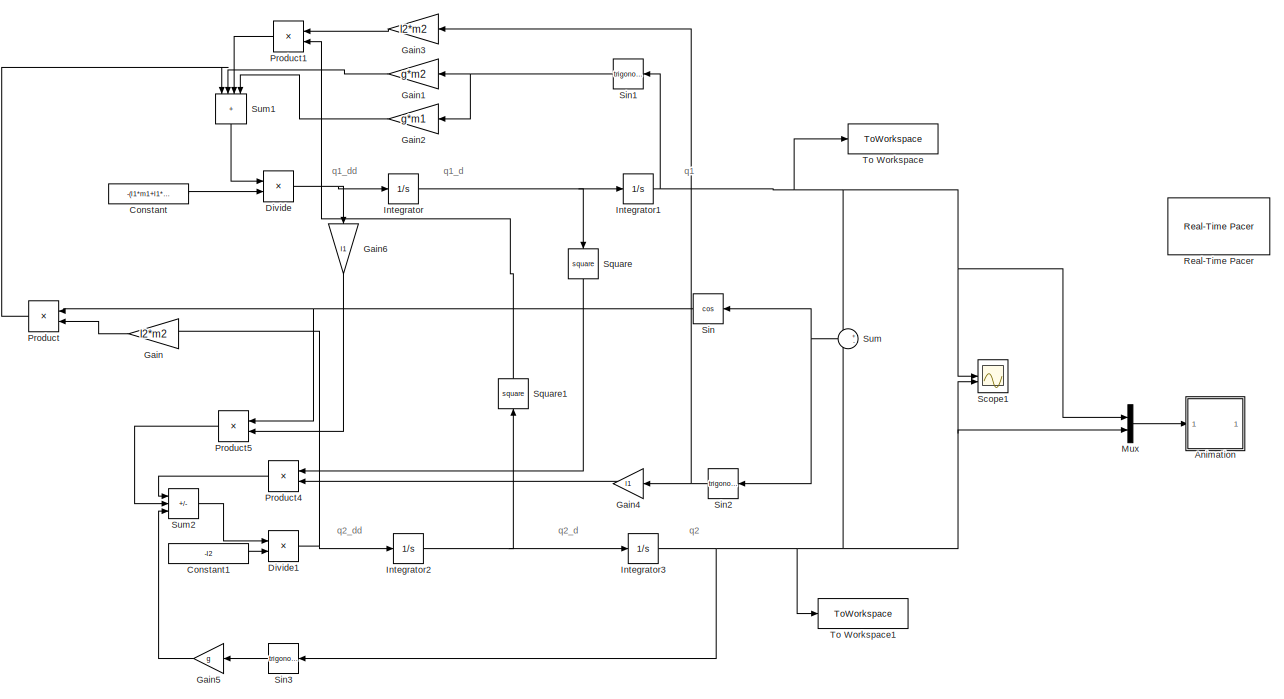
[diagram: root canvas - part 1/2, full width, top band]
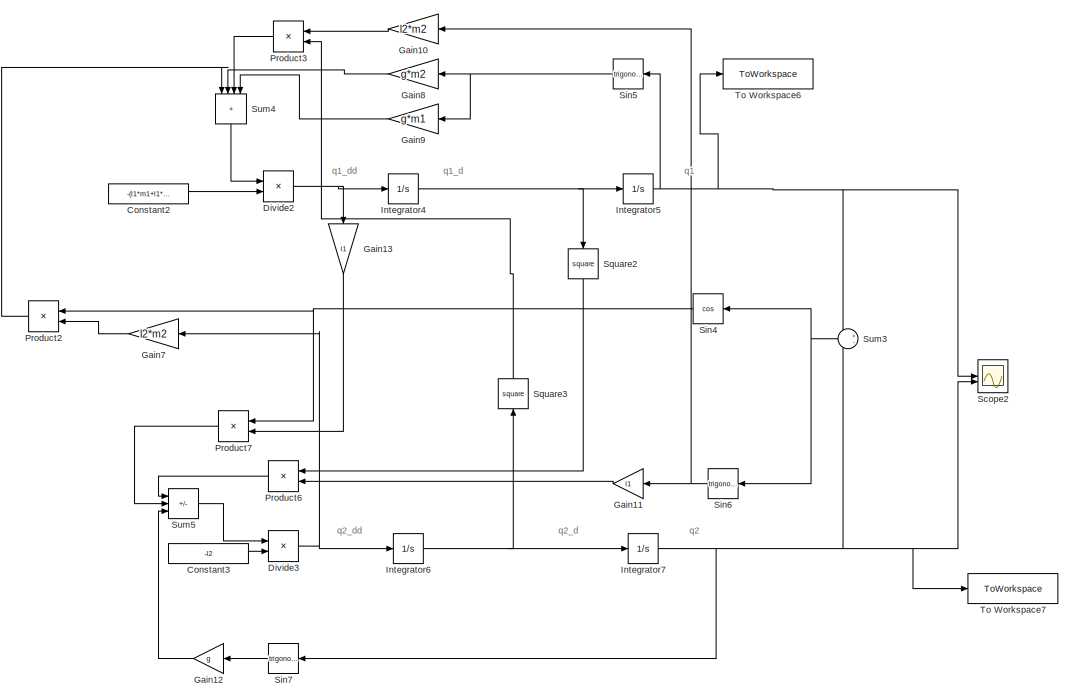
[diagram: root canvas - part 2/2, full width, bottom band]
MODEL slx_4c318d818529
KIND model
CONFIG AbsTol = auto
CONFIG EnableMultiTasking = off
CONFIG FixedStep = 0.01
CONFIG MaxStep = auto
CONFIG MinStep = auto
CONFIG RelTol = 1e-3
CONFIG SampleTimeConstraint = Unconstrained
CONFIG SolverName = ode4
CONFIG StartTime = 0.0
CONFIG StopTime = 100
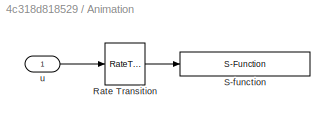
BLOCK [SubSystem] Animation
BLOCK [RateTransition] Animation/Rate Transition
BLOCK [S-Function] Animation/S-function
  DeleteFcn = pendan([],[],[],'DeleteBlock');
  EnableBusSupport = off
  FunctionName = pendelSFunc
  SFcnIsStateOwnerBlock = off
  SFunctionDeploymentMode = off
BLOCK [Inport] Animation/u
BLOCK [Constant] Constant
  Value = -(l1*m1+l1*m2)
BLOCK [Constant] Constant1
  Value = -l2
BLOCK [Constant] Constant2
  Commented = on
  Value = -(l1*m1+l1*m2)
BLOCK [Constant] Constant3
  Commented = on
  Value = -l2
BLOCK [Product] Divide
  Inputs = */
BLOCK [Product] Divide1
  Inputs = */
BLOCK [Product] Divide2
  Commented = on
  Inputs = */
BLOCK [Product] Divide3
  Commented = on
  Inputs = */
BLOCK [Gain] Gain
  Gain = l2*m2
  NameLocation = top
BLOCK [Gain] Gain1
  Gain = g*m2
  NameLocation = top
BLOCK [Gain] Gain10
  Commented = on
  Gain = l2*m2
  NameLocation = top
BLOCK [Gain] Gain11
  Commented = on
  Gain = l1
  NameLocation = top
BLOCK [Gain] Gain12
  Commented = on
  Gain = g
  NameLocation = top
BLOCK [Gain] Gain13
  Commented = on
  Gain = l1
  NameLocation = left
BLOCK [Gain] Gain2
  Gain = g*m1
  NameLocation = top
BLOCK [Gain] Gain3
  Gain = l2*m2
  NameLocation = top
BLOCK [Gain] Gain4
  Gain = l1
  NameLocation = top
BLOCK [Gain] Gain5
  Gain = g
  NameLocation = top
BLOCK [Gain] Gain6
  Gain = l1
  NameLocation = left
BLOCK [Gain] Gain7
  Commented = on
  Gain = l2*m2
  NameLocation = top
BLOCK [Gain] Gain8
  Commented = on
  Gain = g*m2
  NameLocation = top
BLOCK [Gain] Gain9
  Commented = on
  Gain = g*m1
  NameLocation = top
BLOCK [Integrator] Integrator
BLOCK [Integrator] Integrator1
  InitialCondition = 180/180*pi
BLOCK [Integrator] Integrator2
BLOCK [Integrator] Integrator3
  InitialCondition = 180/180*pi
BLOCK [Integrator] Integrator4
  Commented = on
BLOCK [Integrator] Integrator5
  Commented = on
  InitialCondition = 45/180*pi + epsilon
BLOCK [Integrator] Integrator6
  Commented = on
BLOCK [Integrator] Integrator7
  Commented = on
  InitialCondition = 180/180*pi
BLOCK [Mux] Mux
  DisplayOption = bar
  Inputs = 2
BLOCK [Product] Product
  NameLocation = top
BLOCK [Product] Product1
  NameLocation = top
BLOCK [Product] Product2
  Commented = on
  NameLocation = top
BLOCK [Product] Product3
  Commented = on
  NameLocation = top
BLOCK [Product] Product4
  NameLocation = top
BLOCK [Product] Product5
  NameLocation = top
BLOCK [Product] Product6
  Commented = on
  NameLocation = top
BLOCK [Product] Product7
  Commented = on
  NameLocation = top
BLOCK [Reference] Real-Time Pacer  REF=realtime_pacer_lib/Real-Time Pacer
  Commented = on
  SourceBlock = realtime_pacer_lib/Real-Time Pacer
  SourceType = RealTime_Pacer
BLOCK [Scope] Scope1
  Floating = off
  NumInputPorts = 2
  ScopeSpecificationString = Simulink.scopes.TimeScopeBlockCfg('CurrentConfiguration', extmgr.ConfigurationSet(extmgr.Configuration('Core','General UI',true),extmgr.Configuration('Core','Source UI',true),extmgr.Configuration('Sources','WiredSimulink',true,'DataLoggingVariableName','ScopeData1'),extmgr.Configuration('Visuals','Time Domain',true,'SerializedDisplays',{struct('MinYLimReal','2.14159','MaxYLimReal','4.14159','YLabe...<+2068ch>
BLOCK [Scope] Scope2
  Commented = on
  Floating = off
  NumInputPorts = 2
  ScopeSpecificationString = Simulink.scopes.TimeScopeBlockCfg('CurrentConfiguration', extmgr.ConfigurationSet(extmgr.Configuration('Core','General UI',true),extmgr.Configuration('Core','Source UI',true),extmgr.Configuration('Sources','WiredSimulink',true,'DataLoggingVariableName','ScopeData1'),extmgr.Configuration('Visuals','Time Domain',true,'SerializedDisplays',{struct('MinYLimReal','-54.34224','MaxYLimReal','30.41554','YL...<+2100ch>
BLOCK [Trigonometry] Sin
  NameLocation = top
  Operator = cos
BLOCK [Trigonometry] Sin1
  NameLocation = top
BLOCK [Trigonometry] Sin2
  NameLocation = top
BLOCK [Trigonometry] Sin3
  NameLocation = top
BLOCK [Trigonometry] Sin4
  Commented = on
  NameLocation = top
  Operator = cos
BLOCK [Trigonometry] Sin5
  Commented = on
  NameLocation = top
BLOCK [Trigonometry] Sin6
  Commented = on
  NameLocation = top
BLOCK [Trigonometry] Sin7
  Commented = on
  NameLocation = top
BLOCK [Math] Square
  NameLocation = left
  Operator = square
BLOCK [Math] Square1
  NameLocation = right
  Operator = square
BLOCK [Math] Square2
  Commented = on
  NameLocation = left
  Operator = square
BLOCK [Math] Square3
  Commented = on
  NameLocation = right
  Operator = square
BLOCK [Sum] Sum
  Inputs = +-
  NameLocation = top
BLOCK [Sum] Sum1
  IconShape = rectangular
  Inputs = ++++
  NameLocation = left
BLOCK [Sum] Sum2
  IconShape = rectangular
  Inputs = -++
BLOCK [Sum] Sum3
  Commented = on
  Inputs = +-
  NameLocation = top
BLOCK [Sum] Sum4
  Commented = on
  IconShape = rectangular
  Inputs = ++++
  NameLocation = left
BLOCK [Sum] Sum5
  Commented = on
  IconShape = rectangular
  Inputs = -++
BLOCK [ToWorkspace] To Workspace
  Commented = on
  FixptAsFi = on
  MaxDataPoints = inf
  SampleTime = -1
  VariableName = q1
BLOCK [ToWorkspace] To Workspace1
  Commented = on
  FixptAsFi = on
  MaxDataPoints = inf
  SampleTime = -1
  VariableName = q2
BLOCK [ToWorkspace] To Workspace6
  Commented = on
  FixptAsFi = on
  MaxDataPoints = inf
  SampleTime = -1
  VariableName = q12
BLOCK [ToWorkspace] To Workspace7
  Commented = on
  FixptAsFi = on
  MaxDataPoints = inf
  SampleTime = -1
  VariableName = q22
ANNOTATION (root): q1
ANNOTATION (root): q1_d
ANNOTATION (root): q1_dd
ANNOTATION (root): q2
ANNOTATION (root): q2_d
ANNOTATION (root): q2_dd
LINE Animation/Rate Transition:1 -> Animation/S-function:1
LINE Animation/u:1 -> Animation/Rate Transition:1
LINE Constant1:1 -> Divide1:2
LINE Constant2:1 -> Divide2:2
LINE Constant3:1 -> Divide3:2
LINE Constant:1 -> Divide:2
NET Divide1:1 -> Gain:1, Integrator2:1
NET Divide2:1 -> Gain13:1, Integrator4:1
NET Divide3:1 -> Gain7:1, Integrator6:1
NET Divide:1 -> Gain6:1, Integrator:1
LINE Gain10:1 -> Product3:1
LINE Gain11:1 -> Product6:2
LINE Gain12:1 -> Sum5:3
LINE Gain13:1 -> Product7:2
LINE Gain1:1 -> Sum1:2
LINE Gain2:1 -> Sum1:4
LINE Gain3:1 -> Product1:1
LINE Gain4:1 -> Product4:2
LINE Gain5:1 -> Sum2:3
LINE Gain6:1 -> Product5:2
LINE Gain7:1 -> Product2:2
LINE Gain8:1 -> Sum4:2
LINE Gain9:1 -> Sum4:4
LINE Gain:1 -> Product:2
NET Integrator1:1 -> Mux:1, Scope1:1, Sin1:1, Sum:1, To Workspace:1
NET Integrator2:1 -> Integrator3:1, Square1:1
NET Integrator3:1 -> Mux:2, Scope1:2, Sin3:1, Sum:2, To Workspace1:1
NET Integrator4:1 -> Integrator5:1, Square2:1
NET Integrator5:1 -> Scope2:1, Sin5:1, Sum3:1, To Workspace6:1
NET Integrator6:1 -> Integrator7:1, Square3:1
NET Integrator7:1 -> Scope2:2, Sin7:1, Sum3:2, To Workspace7:1
NET Integrator:1 -> Integrator1:1, Square:1
LINE Mux:1 -> Animation:1
LINE Product1:1 -> Sum1:3
LINE Product2:1 -> Sum4:1
LINE Product3:1 -> Sum4:3
LINE Product4:1 -> Sum2:1
LINE Product5:1 -> Sum2:2
LINE Product6:1 -> Sum5:1
LINE Product7:1 -> Sum5:2
LINE Product:1 -> Sum1:1
NET Sin1:1 -> Gain1:1, Gain2:1
NET Sin2:1 -> Gain3:1, Gain4:1
LINE Sin3:1 -> Gain5:1
NET Sin4:1 -> Product2:1, Product7:1
NET Sin5:1 -> Gain8:1, Gain9:1
NET Sin6:1 -> Gain10:1, Gain11:1
LINE Sin7:1 -> Gain12:1
NET Sin:1 -> Product5:1, Product:1
LINE Square1:1 -> Product1:2
LINE Square2:1 -> Product6:1
LINE Square3:1 -> Product3:2
LINE Square:1 -> Product4:1
LINE Sum1:1 -> Divide:1
LINE Sum2:1 -> Divide1:1
NET Sum3:1 -> Sin4:1, Sin6:1
LINE Sum4:1 -> Divide2:1
LINE Sum5:1 -> Divide3:1
NET Sum:1 -> Sin2:1, Sin:1
note: NET lines group one-source signal fan-out (src -> all destinations, sorted); 1:1 wires keep LINE
